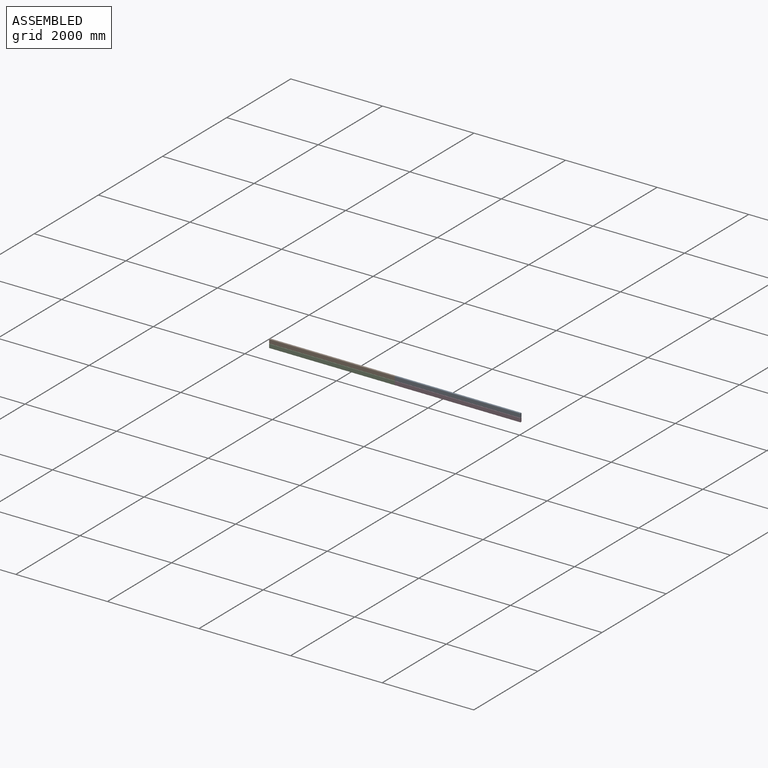
[diagram: assembled view]
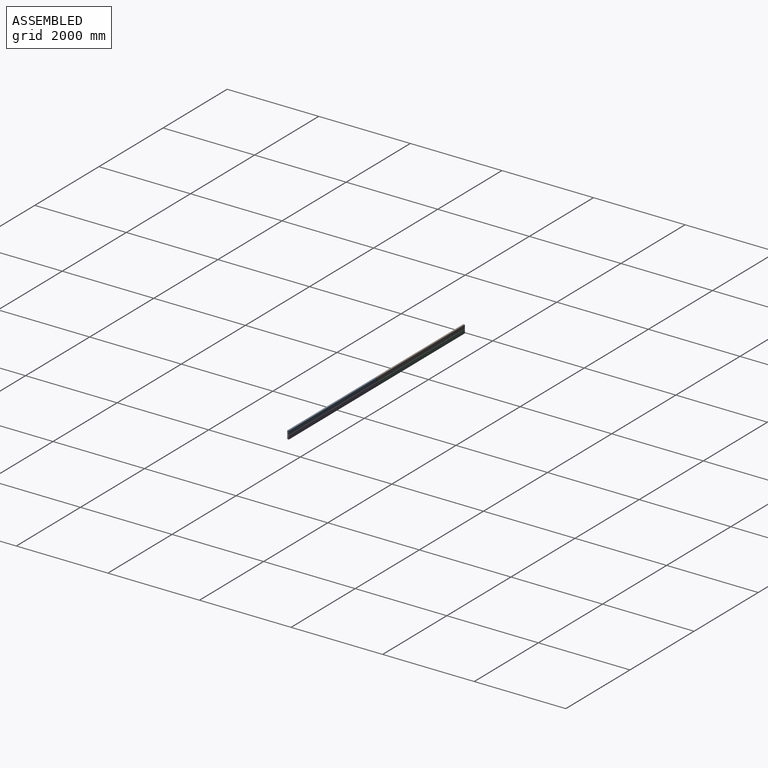
[diagram: assembled view, second angle]
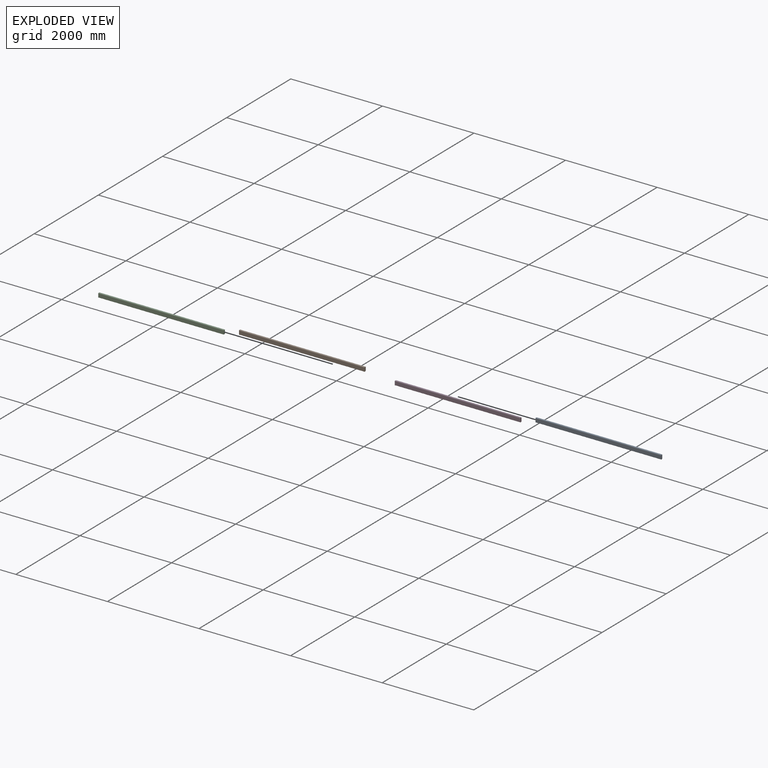
[diagram: exploded view]
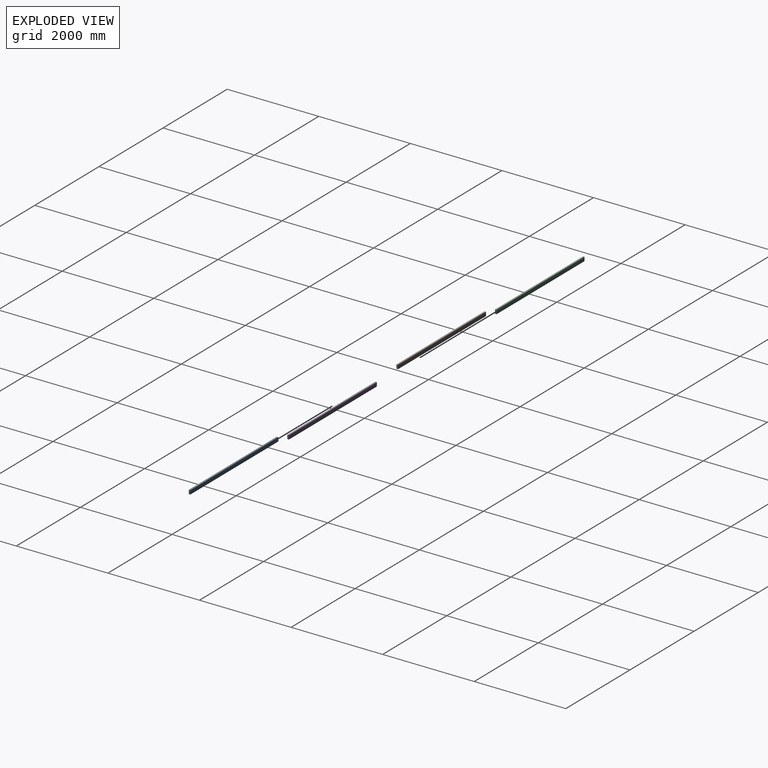
[diagram: exploded view, second angle]
ASSEMBLY  parts=4 mates=3
PART A: 26 faces, bbox 39.1x2743.2x89.9 mm
  f0: plane 2738.12x76.2mm, normal (-1,0,0), area 208644.7mm2, adj f6,f9,f13,f21
  f1: plane 2738.12x25.4mm, normal (0,0,-1), area 69548.2mm2, adj f6,f7,f10,f18
  f2: plane 2738.12x76.2mm, normal (1,0,0), area 208644.7mm2, adj f7,f8,f14,f22
  f3: plane 2738.12x25.4mm, normal (0,0,1), area 69548.2mm2, adj f8,f9,f17,f25
  f4: plane 83.82x33.02mm, normal (0,-1,0), area 2755.3mm2, adj f10,f11,f12,f13,f14,f15,f16,f17
  f5: plane 83.82x33.02mm, normal (0,1,0), area 2755.3mm2, adj f18,f19,f20,f21,f22,f23,f24,f25
  f6: cylinder r=6.35mm len=2738.12mm, axis (0,-1,0), area 27311.5mm2, adj f0,f1,f11,f19
  f7: cylinder r=6.35mm len=2738.12mm, axis (0,1,0), area 27311.5mm2, adj f1,f2,f12,f20
  f8: cylinder r=6.35mm len=2738.12mm, axis (0,-1,0), area 27311.5mm2, adj f2,f3,f16,f24
  f9: cylinder r=6.35mm len=2738.12mm, axis (0,1,0), area 27311.5mm2, adj f0,f3,f15,f23
  f10: cylinder r=2.54mm len=25.4mm, axis (-1,0,0), area 101.3mm2, adj f1,f4,f11,f12
  f11: torus R=3.81mm, axis (0,-1,0), area 34mm2, adj f4,f6,f10,f13
  f12: torus R=3.81mm, axis (0,-1,0), area 34mm2, adj f4,f7,f10,f14
  f13: cylinder r=2.54mm len=76.2mm, axis (0,0,1), area 304mm2, adj f0,f4,f11,f15
  f14: cylinder r=2.54mm len=76.2mm, axis (0,0,-1), area 304mm2, adj f2,f4,f12,f16
  f15: torus R=3.81mm, axis (0,-1,0), area 34mm2, adj f4,f9,f13,f17
  f16: torus R=3.81mm, axis (0,-1,0), area 34mm2, adj f4,f8,f14,f17
  f17: cylinder r=2.54mm len=25.4mm, axis (1,0,0), area 101.3mm2, adj f3,f4,f15,f16
  f18: cylinder r=2.54mm len=25.4mm, axis (1,0,0), area 101.3mm2, adj f1,f5,f19,f20
  f19: torus R=3.81mm, axis (0,-1,0), area 34mm2, adj f5,f6,f18,f21
  f20: torus R=3.81mm, axis (0,-1,0), area 34mm2, adj f5,f7,f18,f22
  f21: cylinder r=2.54mm len=76.2mm, axis (0,0,-1), area 304mm2, adj f0,f5,f19,f23
  f22: cylinder r=2.54mm len=76.2mm, axis (0,0,1), area 304mm2, adj f2,f5,f20,f24
  f23: torus R=3.81mm, axis (0,-1,0), area 34mm2, adj f5,f9,f21,f25
  f24: torus R=3.81mm, axis (0,-1,0), area 34mm2, adj f5,f8,f22,f25
  f25: cylinder r=2.54mm len=25.4mm, axis (-1,0,0), area 101.3mm2, adj f3,f5,f23,f24
PART B: same geometry as A
PART C: same geometry as A
PART D: same geometry as A
PLACE A rot(axis=(-0.71,-0.71,0),180deg) t=(4143.63,-183.37,-934.04)mm
PLACE B rot(axis=(-0.71,-0.71,0),180deg) t=(1400.43,-183.37,-934.04)mm
PLACE C rot(axis=(0,0,-1),90deg) t=(1400.43,-145.27,-1111.84)mm
PLACE D rot(axis=(0,0,-1),90deg) t=(4143.63,-145.27,-1111.84)mm
MATE fastened C.f3 <-> B.f3  axis (0,0,1) through (28.83,-164.32,-1022.94)mm
MATE fastened A.f4 <-> B.f5  axis (-1,0,0) through (1400.43,-164.32,-978.49)mm
MATE fastened C.f5 <-> D.f4  axis (1,0,0) through (1400.43,-164.32,-1067.39)mm
